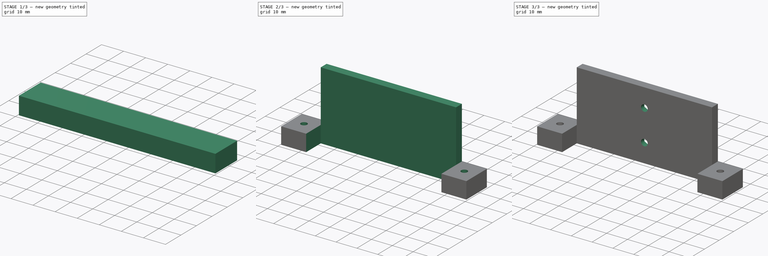
[diagram: build sequence overview — one tinted view per stage of 3, left to right]
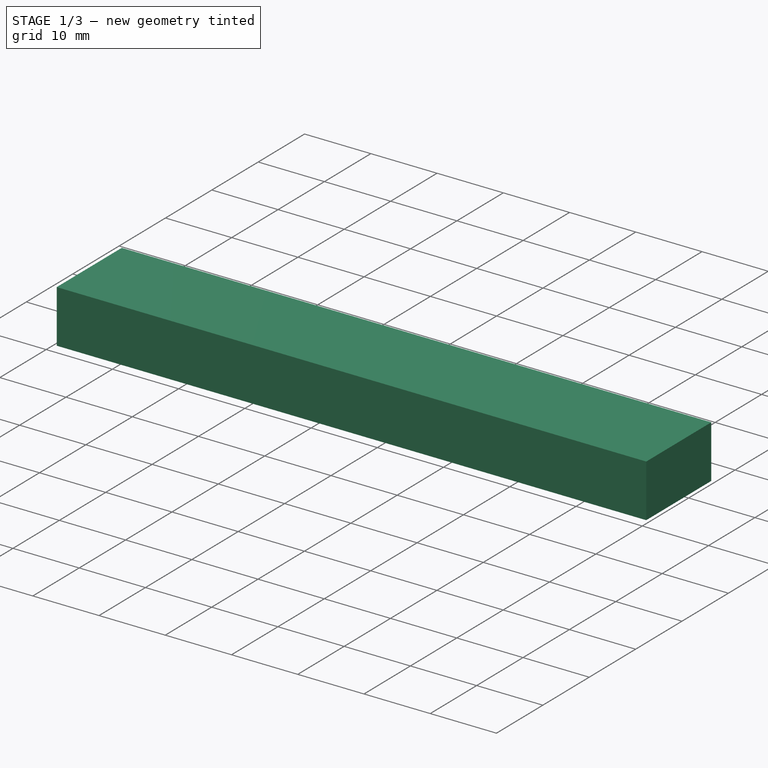
[diagram: stage 1 of 3 — iso view after this stage's code; geometry added in this stage tinted green]
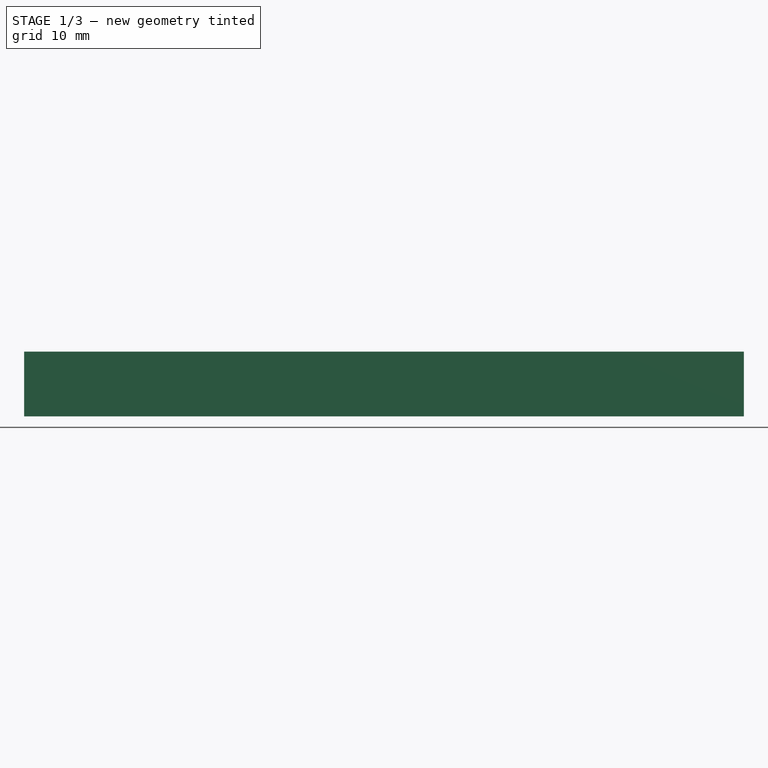
[diagram: stage 1 of 3 — front view after this stage's code; geometry added in this stage tinted green]
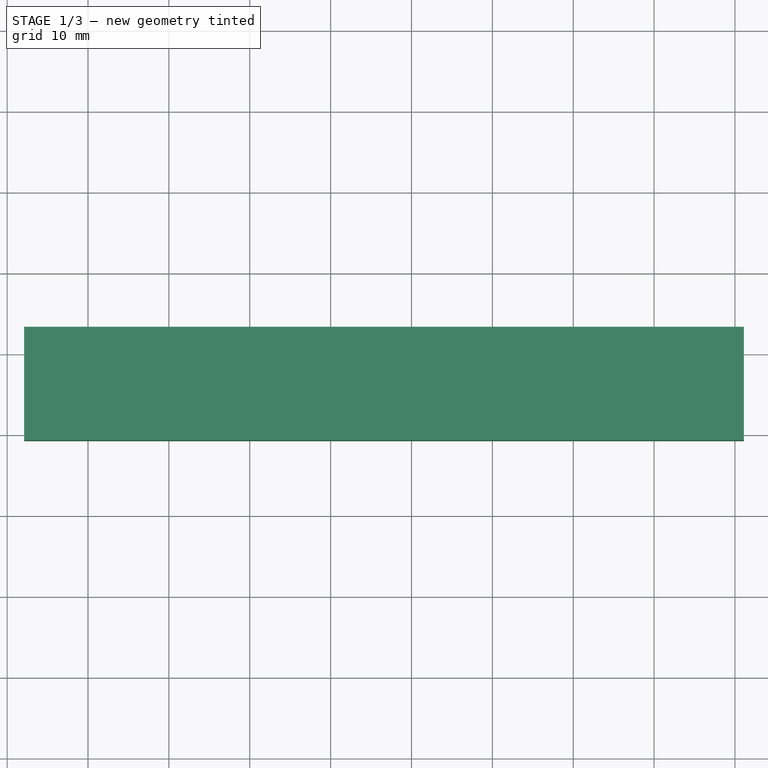
[diagram: stage 1 of 3 — top view after this stage's code; geometry added in this stage tinted green]
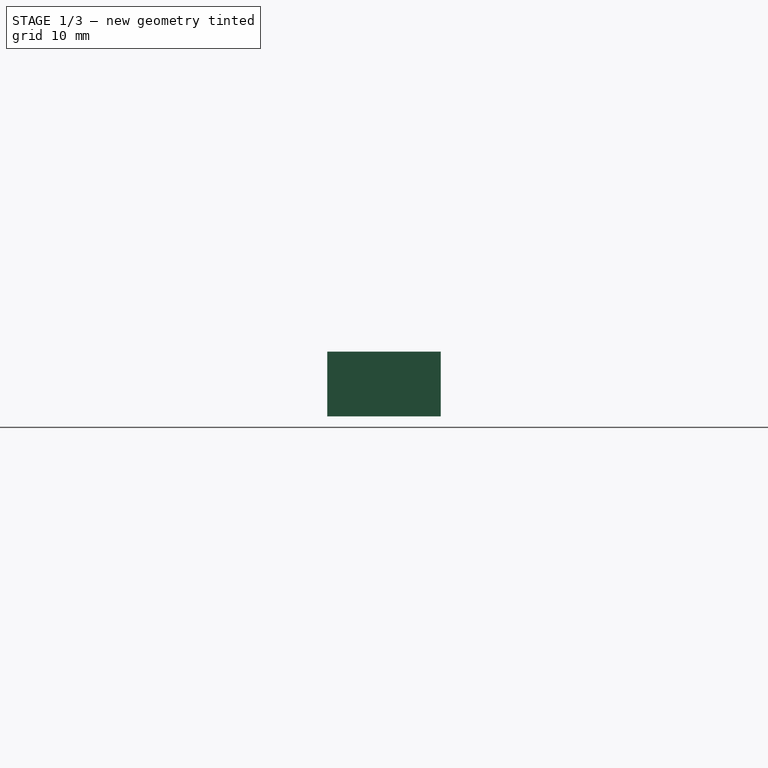
[diagram: stage 1 of 3 — right view after this stage's code; geometry added in this stage tinted green]
FCSTD DOCUMENT  (FreeCAD 0.19R24366 (Git))
Label: mfm_deprecated_battery_mount
License: All rights reserved
LicenseURL: http://en.wikipedia.org/wiki/All_rights_reserved
objects: Sketcher::SketchObject×8, PartDesign::Pocket×5, PartDesign::Pad×2, PartDesign::Body×1
note: 23 computed .brp shape members not serialized (recipe doc carries the construction recipe); baked Part::Feature solids carry a one-line shape summary decoded from their .brp

FEATURE [Sketcher::SketchObject] Sketch  label="Enclosure Outline"
  FullyConstrained = false
  sketch-geometry (275):
    g0: LineSegment StartX=177.84 StartY=124.307 StartZ=0 EndX=177.84 EndY=123.222 EndZ=0
    g1: LineSegment StartX=177.84 StartY=123.222 StartZ=0 EndX=177.241 EndY=123.222 EndZ=0
    g2: LineSegment StartX=177.241 StartY=123.222 StartZ=0 EndX=177.241 EndY=122.916 EndZ=0
    g3: LineSegment StartX=177.241 StartY=122.916 StartZ=0 EndX=177.84 EndY=122.916 EndZ=0
    g4: LineSegment StartX=177.84 StartY=122.916 StartZ=0 EndX=177.84 EndY=122.578 EndZ=0
    g5: LineSegment StartX=177.84 StartY=122.578 StartZ=0 EndX=178.122 EndY=122.578 EndZ=0
    g6: LineSegment StartX=178.122 StartY=122.578 StartZ=0 EndX=178.122 EndY=122.916 EndZ=0
    g7: LineSegment StartX=178.122 StartY=122.916 StartZ=0 EndX=179.741 EndY=122.916 EndZ=0
    g8: LineSegment StartX=179.741 StartY=122.916 StartZ=0 EndX=179.741 EndY=123.167 EndZ=0
    g9: LineSegment StartX=179.741 StartY=123.167 StartZ=0 EndX=178.122 EndY=124.307 EndZ=0
    g10: LineSegment StartX=178.122 StartY=124.307 StartZ=0 EndX=177.84 EndY=124.307 EndZ=0
    g11: LineSegment StartX=178.122 StartY=123.222 StartZ=0 EndX=178.122 EndY=124.005 EndZ=0
    g12: LineSegment StartX=178.122 StartY=124.005 StartZ=0 EndX=179.25 EndY=123.222 EndZ=0
    g13: LineSegment StartX=179.25 StartY=123.222 StartZ=0 EndX=178.122 EndY=123.222 EndZ=0
    g14: LineSegment StartX=179.029 StartY=122.247 StartZ=0 EndX=178.996 EndY=121.93 EndZ=0
    g15: BSplineCurve PolesCount=10 KnotsCount=5 Degree=3 IsPeriodic=0
    g16: BSplineCurve PolesCount=12 KnotsCount=6 Degree=3 IsPeriodic=0
    g17: BSplineCurve PolesCount=8 KnotsCount=4 Degree=3 IsPeriodic=0
    g18: BSplineCurve PolesCount=6 KnotsCount=3 Degree=3 IsPeriodic=0
    g19: BSplineCurve PolesCount=6 KnotsCount=3 Degree=3 IsPeriodic=0
    g20: LineSegment StartX=177.241 StartY=122.304 StartZ=0 EndX=177.241 EndY=120.652 EndZ=0
    g21: LineSegment StartX=177.241 StartY=120.652 StartZ=0 EndX=177.537 EndY=120.652 EndZ=0
    g22: LineSegment StartX=177.537 StartY=120.652 StartZ=0 EndX=177.537 EndY=121.877 EndZ=0
    g23: BSplineCurve PolesCount=6 KnotsCount=3 Degree=3 IsPeriodic=0
    g24: BSplineCurve PolesCount=8 KnotsCount=4 Degree=3 IsPeriodic=0
    g25: BSplineCurve PolesCount=10 KnotsCount=5 Degree=3 IsPeriodic=0
    g26: BSplineCurve PolesCount=10 KnotsCount=5 Degree=3 IsPeriodic=0
    g27: LineSegment StartX=174.553 StartY=146.394 StartZ=0 EndX=174.553 EndY=98.423 EndZ=0
    g28: ArcOfCircle CenterX=180.101 CenterY=93.9087 CenterZ=0 NormalX=0 NormalY=0 NormalZ=1 AngleXU=0 Radius=7.15218 StartAngle=1.5708 EndAngle=2.45851
    g29: LineSegment StartX=180.101 StartY=101.061 StartZ=0 EndX=180.601 EndY=101.061 EndZ=0
    g30: ArcOfCircle CenterX=180.601 CenterY=102.909 CenterZ=0 NormalX=0 NormalY=0 NormalZ=1 AngleXU=0 Radius=1.84782 StartAngle=4.71239 EndAngle=6.28319
    g31: LineSegment StartX=182.448 StartY=102.909 StartZ=0 EndX=182.448 EndY=141.909 EndZ=0
    g32: ArcOfCircle CenterX=180.601 CenterY=141.909 CenterZ=0 NormalX=0 NormalY=0 NormalZ=1 AngleXU=0 Radius=1.84782 StartAngle=0 EndAngle=1.5708
    g33: LineSegment StartX=180.601 StartY=143.756 StartZ=0 EndX=180.101 EndY=143.756 EndZ=0
    g34: ArcOfCircle CenterX=180.101 CenterY=150.909 CenterZ=0 NormalX=0 NormalY=0 NormalZ=1 AngleXU=0 Radius=7.15218 StartAngle=3.82468 EndAngle=4.71239
    g35: ArcOfCircle CenterX=73.1006 CenterY=150.909 CenterZ=0 NormalX=0 NormalY=0 NormalZ=1 AngleXU=0 Radius=7.15218 StartAngle=4.71239 EndAngle=5.6001
    g36: ArcOfCircle CenterX=73.1006 CenterY=93.9087 CenterZ=0 NormalX=0 NormalY=0 NormalZ=1 AngleXU=0 Radius=7.15218 StartAngle=0.683086 EndAngle=1.5708
    g37: LineSegment StartX=78.6481 StartY=98.423 StartZ=0 EndX=78.6481 EndY=146.394 EndZ=0
    g38: LineSegment StartX=79.8737 StartY=148.78 StartZ=0 EndX=79.8737 EndY=96.0378 EndZ=0
    g39: LineSegment StartX=73.1006 StartY=143.756 StartZ=0 EndX=72.6006 EndY=143.756 EndZ=0
    g40: ArcOfCircle CenterX=72.6006 CenterY=141.909 CenterZ=0 NormalX=0 NormalY=0 NormalZ=1 AngleXU=0 Radius=1.84782 StartAngle=1.5708 EndAngle=3.14159
    g41: LineSegment StartX=70.7528 StartY=141.909 StartZ=0 EndX=70.7528 EndY=102.909 EndZ=0
    g42: ArcOfCircle CenterX=72.6006 CenterY=102.909 CenterZ=0 NormalX=0 NormalY=0 NormalZ=1 AngleXU=0 Radius=1.84782 StartAngle=3.14159 EndAngle=4.71239
    g43: LineSegment StartX=72.6006 StartY=101.061 StartZ=0 EndX=73.1006 EndY=101.061 EndZ=0
    g44: LineSegment StartX=173.328 StartY=96.0378 StartZ=0 EndX=173.328 EndY=148.78 EndZ=0
    g45: LineSegment StartX=175.16 StartY=161.409 StartZ=0 EndX=175.16 EndY=150.909 EndZ=0
    g46: LineSegment StartX=175.601 StartY=150.909 StartZ=0 EndX=175.601 EndY=156.94 EndZ=0
    g47: LineSegment StartX=175.601 StartY=161.409 StartZ=0 EndX=175.601 EndY=156.94 EndZ=0
    g48: ArcOfCircle CenterX=180.101 CenterY=150.909 CenterZ=0 NormalX=0 NormalY=0 NormalZ=1 AngleXU=0 Radius=4.94082 StartAngle=3.14159 EndAngle=4.71239
    g49: ArcOfCircle CenterX=180.101 CenterY=150.909 CenterZ=0 NormalX=0 NormalY=0 NormalZ=1 AngleXU=0 Radius=4.5 StartAngle=3.14159 EndAngle=4.71239
    g50: LineSegment StartX=175.16 StartY=93.9087 StartZ=0 EndX=175.16 EndY=83.4087 EndZ=0
    g51: LineSegment StartX=175.601 StartY=87.8773 StartZ=0 EndX=175.601 EndY=83.4087 EndZ=0
    g52: LineSegment StartX=175.601 StartY=87.8773 StartZ=0 EndX=175.601 EndY=93.9087 EndZ=0
    g53: ArcOfCircle CenterX=180.101 CenterY=93.9087 CenterZ=0 NormalX=0 NormalY=0 NormalZ=1 AngleXU=0 Radius=4.94082 StartAngle=1.5708 EndAngle=3.14159
    g54: ArcOfCircle CenterX=180.101 CenterY=93.9087 CenterZ=0 NormalX=0 NormalY=0 NormalZ=1 AngleXU=0 Radius=4.5 StartAngle=1.5708 EndAngle=3.14159
    g55: ArcOfCircle CenterX=73.1006 CenterY=93.9087 CenterZ=0 NormalX=0 NormalY=0 NormalZ=1 AngleXU=0 Radius=4.94082 StartAngle=0 EndAngle=1.5708
    g56: ArcOfCircle CenterX=73.1006 CenterY=93.9087 CenterZ=0 NormalX=0 NormalY=0 NormalZ=1 AngleXU=0 Radius=4.5 StartAngle=0 EndAngle=1.5708
    g57: LineSegment StartX=78.0415 StartY=83.4087 StartZ=0 EndX=78.0415 EndY=93.9087 EndZ=0
    g58: LineSegment StartX=77.6006 StartY=93.9087 StartZ=0 EndX=77.6006 EndY=87.8773 EndZ=0
    g59: LineSegment StartX=77.6006 StartY=83.4087 StartZ=0 EndX=77.6006 EndY=87.8773 EndZ=0
    g60: LineSegment StartX=180.101 StartY=146.409 StartZ=0 EndX=180.601 EndY=146.409 EndZ=0
    g61: ArcOfCircle CenterX=180.601 CenterY=141.909 CenterZ=0 NormalX=0 NormalY=0 NormalZ=1 AngleXU=0 Radius=4.5 StartAngle=0 EndAngle=1.5708
    g62: LineSegment StartX=185.101 StartY=141.909 StartZ=0 EndX=185.101 EndY=102.909 EndZ=0
    g63: ArcOfCircle CenterX=180.601 CenterY=102.909 CenterZ=0 NormalX=0 NormalY=0 NormalZ=1 AngleXU=0 Radius=4.5 StartAngle=4.71239 EndAngle=6.28319
    g64: LineSegment StartX=180.601 StartY=98.4087 StartZ=0 EndX=180.101 EndY=98.4087 EndZ=0
    g65: ArcOfCircle CenterX=171.101 CenterY=83.4087 CenterZ=0 NormalX=0 NormalY=0 NormalZ=1 AngleXU=0 Radius=4.5 StartAngle=4.71239 EndAngle=6.28319
    g66: LineSegment StartX=171.101 StartY=78.9087 StartZ=0 EndX=82.1006 EndY=78.9087 EndZ=0
    g67: ArcOfCircle CenterX=82.1006 CenterY=83.4087 CenterZ=0 NormalX=0 NormalY=0 NormalZ=1 AngleXU=0 Radius=4.5 StartAngle=3.14159 EndAngle=4.71239
    g68: LineSegment StartX=73.1006 StartY=98.4087 StartZ=0 EndX=72.6006 EndY=98.4087 EndZ=0
    g69: ArcOfCircle CenterX=72.6006 CenterY=102.909 CenterZ=0 NormalX=0 NormalY=0 NormalZ=1 AngleXU=0 Radius=4.5 StartAngle=3.14159 EndAngle=4.71239
    g70: LineSegment StartX=68.1006 StartY=102.909 StartZ=0 EndX=68.1006 EndY=141.909 EndZ=0
    g71: ArcOfCircle CenterX=72.6006 CenterY=141.909 CenterZ=0 NormalX=0 NormalY=0 NormalZ=1 AngleXU=0 Radius=4.5 StartAngle=1.5708 EndAngle=3.14159
    g72: LineSegment StartX=72.6006 StartY=146.409 StartZ=0 EndX=73.1006 EndY=146.409 EndZ=0
    g73: LineSegment StartX=77.6006 StartY=156.94 StartZ=0 EndX=77.6006 EndY=161.409 EndZ=0
    g74: ArcOfCircle CenterX=82.1006 CenterY=161.409 CenterZ=0 NormalX=0 NormalY=0 NormalZ=1 AngleXU=0 Radius=4.5 StartAngle=1.5708 EndAngle=3.14159
    g75: LineSegment StartX=82.1006 StartY=165.909 StartZ=0 EndX=171.101 EndY=165.909 EndZ=0
    g76: ArcOfCircle CenterX=171.101 CenterY=161.409 CenterZ=0 NormalX=0 NormalY=0 NormalZ=1 AngleXU=0 Radius=4.5 StartAngle=0 EndAngle=1.5708
    g77: ArcOfCircle CenterX=73.1006 CenterY=150.909 CenterZ=0 NormalX=0 NormalY=0 NormalZ=1 AngleXU=0 Radius=4.94082 StartAngle=4.71239 EndAngle=6.28319
    g78: ArcOfCircle CenterX=73.1006 CenterY=150.909 CenterZ=0 NormalX=0 NormalY=0 NormalZ=1 AngleXU=0 Radius=4.5 StartAngle=4.71239 EndAngle=6.28319
    g79: LineSegment StartX=78.0415 StartY=150.909 StartZ=0 EndX=78.0415 EndY=161.409 EndZ=0
    g80: LineSegment StartX=77.6006 StartY=156.94 StartZ=0 EndX=77.6006 EndY=150.909 EndZ=0
    g81: ArcOfCircle CenterX=180.101 CenterY=93.9087 CenterZ=0 NormalX=0 NormalY=0 NormalZ=1 AngleXU=0 Radius=6 StartAngle=1.5708 EndAngle=3.14159
    g82: ArcOfCircle CenterX=180.101 CenterY=150.909 CenterZ=0 NormalX=0 NormalY=0 NormalZ=1 AngleXU=0 Radius=6 StartAngle=3.14159 EndAngle=4.71239
    g83: ArcOfCircle CenterX=73.1006 CenterY=150.909 CenterZ=0 NormalX=0 NormalY=0 NormalZ=1 AngleXU=0 Radius=6 StartAngle=4.71239 EndAngle=6.28319
    g84: ArcOfCircle CenterX=73.1006 CenterY=93.9087 CenterZ=0 NormalX=0 NormalY=0 NormalZ=1 AngleXU=0 Radius=6 StartAngle=0 EndAngle=1.5708
    g85: LineSegment StartX=78.6598 StartY=150.909 StartZ=0 EndX=78.6598 EndY=161.409 EndZ=0
    g86: LineSegment StartX=79.1006 StartY=150.909 StartZ=0 EndX=79.1006 EndY=161.409 EndZ=0
    g87: ArcOfCircle CenterX=82.1006 CenterY=161.409 CenterZ=0 NormalX=0 NormalY=0 NormalZ=1 AngleXU=0 Radius=3.44082 StartAngle=1.5708 EndAngle=3.14159
    g88: ArcOfCircle CenterX=82.1006 CenterY=161.409 CenterZ=0 NormalX=0 NormalY=0 NormalZ=1 AngleXU=0 Radius=3 StartAngle=1.5708 EndAngle=3.14159
    g89: LineSegment StartX=82.1006 StartY=164.849 StartZ=0 EndX=171.101 EndY=164.849 EndZ=0
    g90: LineSegment StartX=82.1006 StartY=164.409 StartZ=0 EndX=171.101 EndY=164.409 EndZ=0
    g91: ArcOfCircle CenterX=171.101 CenterY=161.409 CenterZ=0 NormalX=0 NormalY=0 NormalZ=1 AngleXU=0 Radius=3.44082 StartAngle=0 EndAngle=1.5708
    g92: ArcOfCircle CenterX=171.101 CenterY=161.409 CenterZ=0 NormalX=0 NormalY=0 NormalZ=1 AngleXU=0 Radius=3 StartAngle=0 EndAngle=1.5708
    g93: LineSegment StartX=174.541 StartY=161.409 StartZ=0 EndX=174.541 EndY=150.909 EndZ=0
    g94: LineSegment StartX=174.101 StartY=161.409 StartZ=0 EndX=174.101 EndY=150.909 EndZ=0
    g95: ArcOfCircle CenterX=180.101 CenterY=150.909 CenterZ=0 NormalX=0 NormalY=0 NormalZ=1 AngleXU=0 Radius=5.55918 StartAngle=3.14159 EndAngle=4.71239
    g96: LineSegment StartX=180.101 StartY=145.349 StartZ=0 EndX=180.601 EndY=145.349 EndZ=0
    g97: LineSegment StartX=180.101 StartY=144.909 StartZ=0 EndX=180.601 EndY=144.909 EndZ=0
    g98: ArcOfCircle CenterX=180.601 CenterY=141.909 CenterZ=0 NormalX=0 NormalY=0 NormalZ=1 AngleXU=0 Radius=3.44082 StartAngle=0 EndAngle=1.5708
    g99: ArcOfCircle CenterX=180.601 CenterY=141.909 CenterZ=0 NormalX=0 NormalY=0 NormalZ=1 AngleXU=0 Radius=3 StartAngle=0 EndAngle=1.5708
    g100: LineSegment StartX=184.041 StartY=141.909 StartZ=0 EndX=184.041 EndY=102.909 EndZ=0
    g101: LineSegment StartX=183.601 StartY=141.909 StartZ=0 EndX=183.601 EndY=102.909 EndZ=0
    g102: ArcOfCircle CenterX=180.601 CenterY=102.909 CenterZ=0 NormalX=0 NormalY=0 NormalZ=1 AngleXU=0 Radius=3.44082 StartAngle=4.71239 EndAngle=6.28319
    g103: ArcOfCircle CenterX=180.601 CenterY=102.909 CenterZ=0 NormalX=0 NormalY=0 NormalZ=1 AngleXU=0 Radius=3 StartAngle=4.71239 EndAngle=6.28319
    g104: LineSegment StartX=180.601 StartY=99.4678 StartZ=0 EndX=180.101 EndY=99.4678 EndZ=0
    g105: LineSegment StartX=180.601 StartY=99.9087 StartZ=0 EndX=180.101 EndY=99.9087 EndZ=0
    g106: ArcOfCircle CenterX=180.101 CenterY=93.9087 CenterZ=0 NormalX=0 NormalY=0 NormalZ=1 AngleXU=0 Radius=5.55918 StartAngle=1.5708 EndAngle=3.14159
    g107: LineSegment StartX=174.541 StartY=93.9087 StartZ=0 EndX=174.541 EndY=83.4087 EndZ=0
    g108: LineSegment StartX=174.101 StartY=93.9087 StartZ=0 EndX=174.101 EndY=83.4087 EndZ=0
    g109: ArcOfCircle CenterX=171.101 CenterY=83.4087 CenterZ=0 NormalX=0 NormalY=0 NormalZ=1 AngleXU=0 Radius=3.44082 StartAngle=4.71239 EndAngle=6.28319
    g110: ArcOfCircle CenterX=171.101 CenterY=83.4087 CenterZ=0 NormalX=0 NormalY=0 NormalZ=1 AngleXU=0 Radius=3 StartAngle=4.71239 EndAngle=6.28319
    g111: LineSegment StartX=171.101 StartY=79.9678 StartZ=0 EndX=82.1006 EndY=79.9678 EndZ=0
    g112: LineSegment StartX=171.101 StartY=80.4087 StartZ=0 EndX=82.1006 EndY=80.4087 EndZ=0
    g113: ArcOfCircle CenterX=82.1006 CenterY=83.4087 CenterZ=0 NormalX=0 NormalY=0 NormalZ=1 AngleXU=0 Radius=3.44082 StartAngle=3.14159 EndAngle=4.71239
    g114: ArcOfCircle CenterX=82.1006 CenterY=83.4087 CenterZ=0 NormalX=0 NormalY=0 NormalZ=1 AngleXU=0 Radius=3 StartAngle=3.14159 EndAngle=4.71239
    g115: LineSegment StartX=78.6598 StartY=83.4087 StartZ=0 EndX=78.6598 EndY=93.9087 EndZ=0
    g116: LineSegment StartX=79.1006 StartY=83.4087 StartZ=0 EndX=79.1006 EndY=93.9087 EndZ=0
    g117: ArcOfCircle CenterX=73.1006 CenterY=93.9087 CenterZ=0 NormalX=0 NormalY=0 NormalZ=1 AngleXU=0 Radius=5.55918 StartAngle=0 EndAngle=1.5708
    g118: LineSegment StartX=73.1006 StartY=99.4678 StartZ=0 EndX=72.6006 EndY=99.4678 EndZ=0
    g119: LineSegment StartX=73.1006 StartY=99.9087 StartZ=0 EndX=72.6006 EndY=99.9087 EndZ=0
    g120: ArcOfCircle CenterX=72.6006 CenterY=102.909 CenterZ=0 NormalX=0 NormalY=0 NormalZ=1 AngleXU=0 Radius=3.44082 StartAngle=3.14159 EndAngle=4.71239
    g121: ArcOfCircle CenterX=72.6006 CenterY=102.909 CenterZ=0 NormalX=0 NormalY=0 NormalZ=1 AngleXU=0 Radius=3 StartAngle=3.14159 EndAngle=4.71239
    g122: LineSegment StartX=69.1598 StartY=102.909 StartZ=0 EndX=69.1598 EndY=141.909 EndZ=0
    g123: LineSegment StartX=69.6006 StartY=102.909 StartZ=0 EndX=69.6006 EndY=141.909 EndZ=0
    g124: ArcOfCircle CenterX=72.6006 CenterY=141.909 CenterZ=0 NormalX=0 NormalY=0 NormalZ=1 AngleXU=0 Radius=3.44082 StartAngle=1.5708 EndAngle=3.14159
    g125: ArcOfCircle CenterX=72.6006 CenterY=141.909 CenterZ=0 NormalX=0 NormalY=0 NormalZ=1 AngleXU=0 Radius=3 StartAngle=1.5708 EndAngle=3.14159
    g126: LineSegment StartX=72.6006 StartY=145.349 StartZ=0 EndX=73.1006 EndY=145.349 EndZ=0
    g127: LineSegment StartX=72.6006 StartY=144.909 StartZ=0 EndX=73.1006 EndY=144.909 EndZ=0
    g128: ArcOfCircle CenterX=73.1006 CenterY=150.909 CenterZ=0 NormalX=0 NormalY=0 NormalZ=1 AngleXU=0 Radius=5.55918 StartAngle=4.71239 EndAngle=6.28319
    g129: ArcOfCircle CenterX=82.1006 CenterY=161.409 CenterZ=0 NormalX=0 NormalY=0 NormalZ=1 AngleXU=0 Radius=4.05918 StartAngle=1.5708 EndAngle=3.14159
    g130: LineSegment StartX=82.1006 StartY=165.468 StartZ=0 EndX=171.101 EndY=165.468 EndZ=0
    g131: ArcOfCircle CenterX=171.101 CenterY=161.409 CenterZ=0 NormalX=0 NormalY=0 NormalZ=1 AngleXU=0 Radius=4.05918 StartAngle=0 EndAngle=1.5708
    g132: LineSegment StartX=180.101 StartY=145.968 StartZ=0 EndX=180.601 EndY=145.968 EndZ=0
    g133: ArcOfCircle CenterX=180.601 CenterY=141.909 CenterZ=0 NormalX=0 NormalY=0 NormalZ=1 AngleXU=0 Radius=4.05918 StartAngle=0 EndAngle=1.5708
    g134: LineSegment StartX=184.66 StartY=141.909 StartZ=0 EndX=184.66 EndY=102.909 EndZ=0
    g135: ArcOfCircle CenterX=180.601 CenterY=102.909 CenterZ=0 NormalX=0 NormalY=0 NormalZ=1 AngleXU=0 Radius=4.05918 StartAngle=4.71239 EndAngle=6.28319
    g136: LineSegment StartX=180.601 StartY=98.8495 StartZ=0 EndX=180.101 EndY=98.8495 EndZ=0
    g137: ArcOfCircle CenterX=171.101 CenterY=83.4087 CenterZ=0 NormalX=0 NormalY=0 NormalZ=1 AngleXU=0 Radius=4.05918 StartAngle=4.71239 EndAngle=6.28319
    g138: LineSegment StartX=171.101 StartY=79.3495 StartZ=0 EndX=82.1006 EndY=79.3495 EndZ=0
    g139: ArcOfCircle CenterX=82.1006 CenterY=83.4087 CenterZ=0 NormalX=0 NormalY=0 NormalZ=1 AngleXU=0 Radius=4.05918 StartAngle=3.14159 EndAngle=4.71239
    g140: LineSegment StartX=73.1006 StartY=98.8495 StartZ=0 EndX=72.6006 EndY=98.8495 EndZ=0
    g141: ArcOfCircle CenterX=72.6006 CenterY=102.909 CenterZ=0 NormalX=0 NormalY=0 NormalZ=1 AngleXU=0 Radius=4.05918 StartAngle=3.14159 EndAngle=4.71239
    g142: LineSegment StartX=68.5415 StartY=102.909 StartZ=0 EndX=68.5415 EndY=141.909 EndZ=0
    g143: ArcOfCircle CenterX=72.6006 CenterY=141.909 CenterZ=0 NormalX=0 NormalY=0 NormalZ=1 AngleXU=0 Radius=4.05918 StartAngle=1.5708 EndAngle=3.14159
    g144: LineSegment StartX=72.6006 StartY=145.968 StartZ=0 EndX=73.1006 EndY=145.968 EndZ=0
    g145: LineSegment StartX=175.985 StartY=156.029 StartZ=0 EndX=175.985 EndY=150.909 EndZ=0
    g146: ArcOfCircle CenterX=180.101 CenterY=150.909 CenterZ=0 NormalX=0 NormalY=0 NormalZ=1 AngleXU=0 Radius=4.11602 StartAngle=3.14159 EndAngle=4.70744
    g147: ArcOfCircle CenterX=180.601 CenterY=141.909 CenterZ=0 NormalX=0 NormalY=0 NormalZ=1 AngleXU=0 Radius=4.91167 StartAngle=0.820843 EndAngle=1.67694
    g148: LineSegment StartX=183.948 StartY=145.503 StartZ=0 EndX=183.948 EndY=155.815 EndZ=0
    g149: ArcOfCircle CenterX=180.101 CenterY=160.909 CenterZ=0 NormalX=0 NormalY=0 NormalZ=1 AngleXU=0 Radius=6.38398 StartAngle=4.0117 EndAngle=5.35931
    g150: LineSegment StartX=185.101 StartY=157.592 StartZ=0 EndX=185.101 EndY=142.409 EndZ=0
    g151: LineSegment StartX=185.101 StartY=102.409 StartZ=0 EndX=185.101 EndY=87.2253 EndZ=0
    g152: ArcOfCircle CenterX=180.101 CenterY=160.909 CenterZ=0 NormalX=0 NormalY=0 NormalZ=1 AngleXU=0 Radius=6 StartAngle=3.86433 EndAngle=5.6975
    g153: ArcOfCircle CenterX=180.601 CenterY=141.909 CenterZ=0 NormalX=0 NormalY=0 NormalZ=1 AngleXU=0 Radius=4.52769 StartAngle=0.110657 EndAngle=1.68145
    g154: ArcOfCircle CenterX=180.601 CenterY=102.909 CenterZ=0 NormalX=0 NormalY=0 NormalZ=1 AngleXU=0 Radius=4.52769 StartAngle=4.60173 EndAngle=6.17253
    g155: ArcOfCircle CenterX=180.101 CenterY=83.9087 CenterZ=0 NormalX=0 NormalY=0 NormalZ=1 AngleXU=0 Radius=6 StartAngle=0.585686 EndAngle=2.41886
    g156: ArcOfCircle CenterX=73.1006 CenterY=83.9087 CenterZ=0 NormalX=0 NormalY=0 NormalZ=1 AngleXU=0 Radius=6 StartAngle=0.722734 EndAngle=2.55591
    g157: LineSegment StartX=68.1006 StartY=87.2253 StartZ=0 EndX=68.1006 EndY=102.409 EndZ=0
    g158: ArcOfCircle CenterX=72.6006 CenterY=102.909 CenterZ=0 NormalX=0 NormalY=0 NormalZ=1 AngleXU=0 Radius=4.52769 StartAngle=3.25225 EndAngle=4.82305
    g159: ArcOfCircle CenterX=72.6006 CenterY=141.909 CenterZ=0 NormalX=0 NormalY=0 NormalZ=1 AngleXU=0 Radius=4.52769 StartAngle=1.46014 EndAngle=3.03094
    g160: LineSegment StartX=68.1006 StartY=142.409 StartZ=0 EndX=68.1006 EndY=157.592 EndZ=0
    g161: ArcOfCircle CenterX=73.1006 CenterY=160.909 CenterZ=0 NormalX=0 NormalY=0 NormalZ=1 AngleXU=0 Radius=6 StartAngle=3.72728 EndAngle=5.56045
    g162: BSplineCurve PolesCount=3 KnotsCount=2 Degree=2 IsPeriodic=0
    g163: BSplineCurve PolesCount=3 KnotsCount=2 Degree=2 IsPeriodic=0
    g164: BSplineCurve PolesCount=4 KnotsCount=2 Degree=3 IsPeriodic=0
    g165: BSplineCurve PolesCount=4 KnotsCount=2 Degree=3 IsPeriodic=0
    g166: BSplineCurve PolesCount=3 KnotsCount=2 Degree=2 IsPeriodic=0
    g167: BSplineCurve PolesCount=3 KnotsCount=2 Degree=2 IsPeriodic=0
    g168: BSplineCurve PolesCount=4 KnotsCount=2 Degree=3 IsPeriodic=0
    g169: BSplineCurve PolesCount=4 KnotsCount=2 Degree=3 IsPeriodic=0
    g170: BSplineCurve PolesCount=4 KnotsCount=2 Degree=3 IsPeriodic=0
    g171: BSplineCurve PolesCount=4 KnotsCount=2 Degree=3 IsPeriodic=0
    g172: BSplineCurve PolesCount=3 KnotsCount=2 Degree=2 IsPeriodic=0
    g173: BSplineCurve PolesCount=3 KnotsCount=2 Degree=2 IsPeriodic=0
    g174: BSplineCurve PolesCount=4 KnotsCount=2 Degree=3 IsPeriodic=0
    g175: BSplineCurve PolesCount=4 KnotsCount=2 Degree=3 IsPeriodic=0
    g176: BSplineCurve PolesCount=3 KnotsCount=2 Degree=2 IsPeriodic=0
    g177: BSplineCurve PolesCount=3 KnotsCount=2 Degree=2 IsPeriodic=0
    g178: ArcOfCircle CenterX=180.101 CenterY=93.9087 CenterZ=0 NormalX=0 NormalY=0 NormalZ=1 AngleXU=0 Radius=7.09981 StartAngle=2.83702 EndAngle=3.14159
    g179: ArcOfCircle CenterX=180.101 CenterY=150.909 CenterZ=0 NormalX=0 NormalY=0 NormalZ=1 AngleXU=0 Radius=7.09981 StartAngle=3.14159 EndAngle=3.44617
    g180: ArcOfCircle CenterX=73.1006 CenterY=150.909 CenterZ=0 NormalX=0 NormalY=0 NormalZ=1 AngleXU=0 Radius=7.09981 StartAngle=5.97861 EndAngle=6.28319
    g181: ArcOfCircle CenterX=73.1006 CenterY=93.9087 CenterZ=0 NormalX=0 NormalY=0 NormalZ=1 AngleXU=0 Radius=7.09981 StartAngle=0 EndAngle=0.304574
    g182: LineSegment StartX=80.2005 StartY=161.409 StartZ=0 EndX=80.2005 EndY=150.909 EndZ=0
    g183: LineSegment StartX=80.2005 StartY=93.9087 StartZ=0 EndX=80.2005 EndY=83.4087 EndZ=0
    g184: ArcOfCircle CenterX=82.1006 CenterY=83.4087 CenterZ=0 NormalX=0 NormalY=0 NormalZ=1 AngleXU=0 Radius=1.90019 StartAngle=3.14159 EndAngle=4.71239
    g185: LineSegment StartX=82.1006 StartY=81.5085 StartZ=0 EndX=171.101 EndY=81.5085 EndZ=0
    g186: ArcOfCircle CenterX=171.101 CenterY=83.4087 CenterZ=0 NormalX=0 NormalY=0 NormalZ=1 AngleXU=0 Radius=1.90019 StartAngle=4.71239 EndAngle=6.28319
    g187: LineSegment StartX=173.001 StartY=83.4087 StartZ=0 EndX=173.001 EndY=93.9087 EndZ=0
    g188: LineSegment StartX=173.001 StartY=150.909 StartZ=0 EndX=173.001 EndY=161.409 EndZ=0
    g189: ArcOfCircle CenterX=171.101 CenterY=161.409 CenterZ=0 NormalX=0 NormalY=0 NormalZ=1 AngleXU=0 Radius=1.90019 StartAngle=0 EndAngle=1.5708
    g190: LineSegment StartX=171.101 StartY=163.309 StartZ=0 EndX=82.1006 EndY=163.309 EndZ=0
    g191: ArcOfCircle CenterX=82.1006 CenterY=161.409 CenterZ=0 NormalX=0 NormalY=0 NormalZ=1 AngleXU=0 Radius=1.90019 StartAngle=1.5708 EndAngle=3.14159
    g192: ArcOfCircle CenterX=180.101 CenterY=93.9087 CenterZ=0 NormalX=0 NormalY=0 NormalZ=1 AngleXU=0 Radius=4.11602 StartAngle=1.57574 EndAngle=3.14159
    g193: LineSegment StartX=175.985 StartY=93.9087 StartZ=0 EndX=175.985 EndY=88.7886 EndZ=0
    g194: ArcOfCircle CenterX=180.101 CenterY=83.9087 CenterZ=0 NormalX=0 NormalY=0 NormalZ=1 AngleXU=0 Radius=6.38398 StartAngle=0.923878 EndAngle=2.27148
    g195: LineSegment StartX=183.948 StartY=89.0027 StartZ=0 EndX=183.948 EndY=99.3147 EndZ=0
    g196: ArcOfCircle CenterX=180.601 CenterY=102.909 CenterZ=0 NormalX=0 NormalY=0 NormalZ=1 AngleXU=0 Radius=4.91167 StartAngle=4.60625 EndAngle=5.46234
    g197: LineSegment StartX=69.2528 StartY=99.3147 StartZ=0 EndX=69.2528 EndY=89.0027 EndZ=0
    g198: ArcOfCircle CenterX=73.1006 CenterY=83.9087 CenterZ=0 NormalX=0 NormalY=0 NormalZ=1 AngleXU=0 Radius=6.38398 StartAngle=0.870111 EndAngle=2.21771
    g199: LineSegment StartX=77.2167 StartY=88.7886 StartZ=0 EndX=77.2167 EndY=93.9087 EndZ=0
    g200: ArcOfCircle CenterX=73.1006 CenterY=93.9087 CenterZ=0 NormalX=0 NormalY=0 NormalZ=1 AngleXU=0 Radius=4.11602 StartAngle=0 EndAngle=1.56585
    g201: ArcOfCircle CenterX=72.6006 CenterY=102.909 CenterZ=0 NormalX=0 NormalY=0 NormalZ=1 AngleXU=0 Radius=4.91167 StartAngle=3.96244 EndAngle=4.81853
    g202: LineSegment StartX=71.5989 StartY=79.3218 StartZ=0 EndX=75.1137 EndY=79.3218 EndZ=0
    g203: ArcOfCircle CenterX=75.1137 CenterY=77.0718 CenterZ=0 NormalX=0 NormalY=0 NormalZ=1 AngleXU=0 Radius=2.25 StartAngle=0.672709 EndAngle=1.5708
    g204: BSplineCurve PolesCount=18 KnotsCount=16 Degree=3 IsPeriodic=0
    g205: LineSegment StartX=78.0462 StartY=77.9087 StartZ=0 EndX=175.155 EndY=77.9087 EndZ=0
    g206: BSplineCurve PolesCount=16 KnotsCount=14 Degree=3 IsPeriodic=0
    g207: ArcOfCircle CenterX=178.088 CenterY=77.0718 CenterZ=0 NormalX=0 NormalY=0 NormalZ=1 AngleXU=0 Radius=2.25 StartAngle=1.5708 EndAngle=2.46888
    g208: LineSegment StartX=178.088 StartY=79.3218 StartZ=0 EndX=181.602 EndY=79.3218 EndZ=0
    g209: BSplineCurve PolesCount=18 KnotsCount=16 Degree=3 IsPeriodic=0
    g210: LineSegment StartX=186.101 StartY=83.82 StartZ=0 EndX=186.101 EndY=160.997 EndZ=0
    g211: BSplineCurve PolesCount=18 KnotsCount=16 Degree=3 IsPeriodic=0
    g212: LineSegment StartX=181.602 StartY=165.496 StartZ=0 EndX=178.088 EndY=165.496 EndZ=0
    g213: ArcOfCircle CenterX=178.088 CenterY=167.746 CenterZ=0 NormalX=0 NormalY=0 NormalZ=1 AngleXU=0 Radius=2.25 StartAngle=3.8143 EndAngle=4.71239
    g214: BSplineCurve PolesCount=16 KnotsCount=14 Degree=3 IsPeriodic=0
    g215: LineSegment StartX=175.155 StartY=166.909 StartZ=0 EndX=78.0462 EndY=166.909 EndZ=0
    g216: BSplineCurve PolesCount=18 KnotsCount=16 Degree=3 IsPeriodic=0
    g217: ArcOfCircle CenterX=75.1137 CenterY=167.746 CenterZ=0 NormalX=0 NormalY=0 NormalZ=1 AngleXU=0 Radius=2.25 StartAngle=4.71239 EndAngle=5.61048
    g218: LineSegment StartX=75.1137 StartY=165.496 StartZ=0 EndX=71.5989 EndY=165.496 EndZ=0
    g219: BSplineCurve PolesCount=18 KnotsCount=16 Degree=3 IsPeriodic=0
    g220: LineSegment StartX=67.1006 StartY=160.997 StartZ=0 EndX=67.1006 EndY=83.82 EndZ=0
    g221: BSplineCurve PolesCount=18 KnotsCount=16 Degree=3 IsPeriodic=0
    g222: LineSegment StartX=78.0588 StartY=167.382 StartZ=0 EndX=175.142 EndY=167.382 EndZ=0
    g223: LineSegment StartX=175.142 StartY=77.4348 StartZ=0 EndX=78.0588 EndY=77.4348 EndZ=0
    g224: Ellipse CenterX=181.573 CenterY=83.8497 CenterZ=0 NormalX=0 NormalY=0 NormalZ=1 MajorRadius=5.00343 MinorRadius=5 AngleXU=-0.785398
    g225: LineSegment StartX=186.574 StartY=160.971 StartZ=0 EndX=186.574 EndY=83.8462 EndZ=0
    g226: LineSegment StartX=178.088 StartY=165.969 StartZ=0 EndX=181.576 EndY=165.969 EndZ=0
    g227: ArcOfCircle CenterX=178.088 CenterY=167.746 CenterZ=0 NormalX=0 NormalY=0 NormalZ=1 AngleXU=0 Radius=1.77619 StartAngle=3.81765 EndAngle=4.71239
    g228: BSplineCurve PolesCount=8 KnotsCount=4 Degree=3 IsPeriodic=0
    g229: BSplineCurve PolesCount=8 KnotsCount=4 Degree=3 IsPeriodic=0
    g230: ArcOfCircle CenterX=75.1137 CenterY=167.746 CenterZ=0 NormalX=0 NormalY=0 NormalZ=1 AngleXU=0 Radius=1.77619 StartAngle=4.71239 EndAngle=5.60713
    g231: LineSegment StartX=71.6251 StartY=165.969 StartZ=0 EndX=75.1137 EndY=165.969 EndZ=0
    g232: Ellipse CenterX=71.6285 CenterY=160.968 CenterZ=0 NormalX=0 NormalY=0 NormalZ=1 MajorRadius=5.00343 MinorRadius=5 AngleXU=2.35619
    g233: LineSegment StartX=66.6268 StartY=83.8462 StartZ=0 EndX=66.6268 EndY=160.971 EndZ=0
    g234: Ellipse CenterX=71.6285 CenterY=83.8497 CenterZ=0 NormalX=0 NormalY=0 NormalZ=1 MajorRadius=5.00343 MinorRadius=5 AngleXU=-2.35619
    g235: LineSegment StartX=75.1137 StartY=78.8479 StartZ=0 EndX=71.6251 EndY=78.8479 EndZ=0
    g236: ArcOfCircle CenterX=75.1137 CenterY=77.0718 CenterZ=0 NormalX=0 NormalY=0 NormalZ=1 AngleXU=0 Radius=1.77619 StartAngle=0.676055 EndAngle=1.5708
    g237: BSplineCurve PolesCount=8 KnotsCount=4 Degree=3 IsPeriodic=0
    g238: BSplineCurve PolesCount=8 KnotsCount=4 Degree=3 IsPeriodic=0
    g239: ArcOfCircle CenterX=178.088 CenterY=77.0718 CenterZ=0 NormalX=0 NormalY=0 NormalZ=1 AngleXU=0 Radius=1.77619 StartAngle=1.5708 EndAngle=2.46554
    g240: LineSegment StartX=181.576 StartY=78.8479 StartZ=0 EndX=178.088 EndY=78.8479 EndZ=0
    g241: Circle CenterX=180.101 CenterY=83.9087 CenterZ=0 NormalX=0 NormalY=0 NormalZ=-1 AngleXU=0 Radius=4.25
    g242: Circle CenterX=73.1006 CenterY=160.909 CenterZ=0 NormalX=0 NormalY=0 NormalZ=-1 AngleXU=0 Radius=4.25
    g243: Circle CenterX=180.101 CenterY=160.909 CenterZ=0 NormalX=0 NormalY=0 NormalZ=-1 AngleXU=0 Radius=4.25
    g244: Circle CenterX=73.1006 CenterY=83.9087 CenterZ=0 NormalX=0 NormalY=0 NormalZ=-1 AngleXU=0 Radius=4.25
    g245: Circle CenterX=180.101 CenterY=83.9087 CenterZ=0 NormalX=0 NormalY=0 NormalZ=-1 AngleXU=0 Radius=2.84044
    g246: Circle CenterX=73.1006 CenterY=160.909 CenterZ=0 NormalX=0 NormalY=0 NormalZ=-1 AngleXU=0 Radius=2.84044
    g247: Circle CenterX=180.101 CenterY=160.909 CenterZ=0 NormalX=0 NormalY=0 NormalZ=-1 AngleXU=0 Radius=2.84044
    g248: Circle CenterX=73.1006 CenterY=83.9087 CenterZ=0 NormalX=0 NormalY=0 NormalZ=-1 AngleXU=0 Radius=2.84044
    g249: LineSegment StartX=69.2528 StartY=155.815 StartZ=0 EndX=69.2528 EndY=145.503 EndZ=0
    g250: ArcOfCircle CenterX=72.6006 CenterY=141.909 CenterZ=0 NormalX=0 NormalY=0 NormalZ=1 AngleXU=0 Radius=4.91167 StartAngle=1.46465 EndAngle=2.32075
    g251: ArcOfCircle CenterX=73.1006 CenterY=150.909 CenterZ=0 NormalX=0 NormalY=0 NormalZ=1 AngleXU=0 Radius=4.11602 StartAngle=4.71734 EndAngle=6.28319
    g252: LineSegment StartX=77.2167 StartY=150.909 StartZ=0 EndX=77.2167 EndY=156.029 EndZ=0
    g253: ArcOfCircle CenterX=73.1006 CenterY=160.909 CenterZ=0 NormalX=0 NormalY=0 NormalZ=1 AngleXU=0 Radius=6.38398 StartAngle=4.06547 EndAngle=5.41307
    g254: Circle CenterX=88.1006 CenterY=156.409 CenterZ=0 NormalX=0 NormalY=0 NormalZ=-1 AngleXU=0 Radius=1.07264
    g255: Circle CenterX=88.1006 CenterY=156.409 CenterZ=0 NormalX=0 NormalY=0 NormalZ=-1 AngleXU=0 Radius=1.125
    g256: Circle CenterX=88.1006 CenterY=88.4087 CenterZ=0 NormalX=0 NormalY=0 NormalZ=-1 AngleXU=0 Radius=1.07264
    g257: Circle CenterX=88.1006 CenterY=88.4087 CenterZ=0 NormalX=0 NormalY=0 NormalZ=-1 AngleXU=0 Radius=1.125
    g258: Circle CenterX=165.101 CenterY=88.4087 CenterZ=0 NormalX=0 NormalY=0 NormalZ=-1 AngleXU=0 Radius=1.07264
    g259: Circle CenterX=165.101 CenterY=88.4087 CenterZ=0 NormalX=0 NormalY=0 NormalZ=-1 AngleXU=0 Radius=1.125
    g260: Circle CenterX=165.101 CenterY=156.409 CenterZ=0 NormalX=0 NormalY=0 NormalZ=-1 AngleXU=0 Radius=1.07264
    g261: Circle CenterX=165.101 CenterY=156.409 CenterZ=0 NormalX=0 NormalY=0 NormalZ=-1 AngleXU=0 Radius=1.125
    g262: Circle CenterX=88.1006 CenterY=156.409 CenterZ=0 NormalX=0 NormalY=0 NormalZ=-1 AngleXU=0 Radius=3.39527
    g263: Circle CenterX=88.1006 CenterY=88.4087 CenterZ=0 NormalX=0 NormalY=0 NormalZ=-1 AngleXU=0 Radius=3.39527
    g264: Circle CenterX=165.101 CenterY=88.4087 CenterZ=0 NormalX=0 NormalY=0 NormalZ=-1 AngleXU=0 Radius=3.39527
    g265: Circle CenterX=165.101 CenterY=156.409 CenterZ=0 NormalX=0 NormalY=0 NormalZ=-1 AngleXU=0 Radius=3.39527
    g266: Circle CenterX=88.1006 CenterY=88.4087 CenterZ=0 NormalX=0 NormalY=0 NormalZ=-1 AngleXU=0 Radius=3.5
    g267: Circle CenterX=88.1006 CenterY=156.409 CenterZ=0 NormalX=0 NormalY=0 NormalZ=-1 AngleXU=0 Radius=3.5
    g268: Circle CenterX=165.101 CenterY=88.4087 CenterZ=0 NormalX=0 NormalY=0 NormalZ=-1 AngleXU=0 Radius=3.5
    g269: Circle CenterX=165.101 CenterY=156.409 CenterZ=0 NormalX=0 NormalY=0 NormalZ=-1 AngleXU=0 Radius=3.5
    g270: Circle CenterX=180.101 CenterY=83.9087 CenterZ=0 NormalX=0 NormalY=0 NormalZ=-1 AngleXU=0 Radius=2.46082
    g271: Circle CenterX=73.1006 CenterY=160.909 CenterZ=0 NormalX=0 NormalY=0 NormalZ=-1 AngleXU=0 Radius=2.46082
    g272: Circle CenterX=180.101 CenterY=160.909 CenterZ=0 NormalX=0 NormalY=0 NormalZ=-1 AngleXU=0 Radius=2.46082
    g273: Circle CenterX=73.1006 CenterY=83.9087 CenterZ=0 NormalX=0 NormalY=0 NormalZ=-1 AngleXU=0 Radius=2.46082
    g274: Ellipse CenterX=181.573 CenterY=160.968 CenterZ=0 NormalX=0 NormalY=0 NormalZ=1 MajorRadius=5.00343 MinorRadius=5 AngleXU=0.785398
FEATURE [Sketcher::SketchObject] Sketch001
  ExternalGeometry = -> [Sketch]
  FullyConstrained = true
  MapMode = 5
  Support = -> [XY_Plane]
  sketch-geometry (7):
    g0: LineSegment StartX=171.101 StartY=163.309 StartZ=0 EndX=171.101 EndY=149.284 EndZ=0
    g1: LineSegment StartX=171.101 StartY=149.284 StartZ=0 EndX=82.1006 EndY=149.284 EndZ=0
    g2: LineSegment StartX=82.1006 StartY=149.284 StartZ=0 EndX=82.1006 EndY=163.309 EndZ=0
    g3: GeomPoint X=88.1006 Y=157.534 Z=0
    g4: GeomPoint X=88.1006 Y=155.284 Z=0
    g5: GeomPoint X=88.1006 Y=159.909 Z=0
    g6: LineSegment StartX=82.1006 StartY=163.309 StartZ=0 EndX=171.101 EndY=163.309 EndZ=0
  constraints (17):
    c: Coincident(g0,g1)
    c: Coincident(g1,g2)
    c: Horizontal(g1)
    c: Vertical(g0)
    c: Vertical(g2)
    c: PointOnObject(g3,g-4)
    c: Coincident(g-5,g2)
    c: Coincident(g0,g-5)
    c: DistanceY(g3,g2) = 5.77519
    c: Symmetric(g3,g4,g-4)
    c: Vertical(g3,g-4)
    c: PointOnObject(g5,g-3)
    c: Vertical(g5,g3)
    c: DistanceY(g5,g2) = 3.40019
    c: DistanceY(g1,g4) = 6
    c: Coincident(g6,g2)
    c: Coincident(g6,g0)
FEATURE [PartDesign::Pad] Pad  label="Base pad"
  Direction = (1,1,1)
  Length = 8
  Length2 = 100
  Profile = -> Sketch001
  Type = 0
FEATURE [Sketcher::SketchObject] Sketch002
  ExternalGeometry = -> [Sketch]
  FullyConstrained = true
  MapMode = 5
  Placement = pos=(0,0,0) rot=(1,0,0;3.14159rad)
  Support = -> [Pad]
  sketch-geometry (4):
    g0: Circle CenterX=88.1006 CenterY=-156.409 CenterZ=0 NormalX=0 NormalY=0 NormalZ=1 AngleXU=0 Radius=3.7
    g1: Circle CenterX=165.101 CenterY=-156.409 CenterZ=0 NormalX=0 NormalY=0 NormalZ=1 AngleXU=0 Radius=3.7
    g2: GeomPoint X=91.6006 Y=-156.409 Z=0
    g3: GeomPoint X=91.8006 Y=-156.409 Z=0
  constraints (8):
    c: Coincident(g0,g-3)
    c: Coincident(g1,g-4)
    c: PointOnObject(g2,g-3)
    c: Horizontal(g-3,g2)
    c: PointOnObject(g3,g0)
    c: Horizontal(g3,g2)
    c: DistanceX(g2,g3) = 0.2
    c: Equal(g1,g0)
FEATURE [PartDesign::Pocket] Pocket  label="Standoff pockets"
  BaseFeature = -> Pad
  Length = 6
  Length2 = 100
  Profile = -> Sketch002
  Type = 0
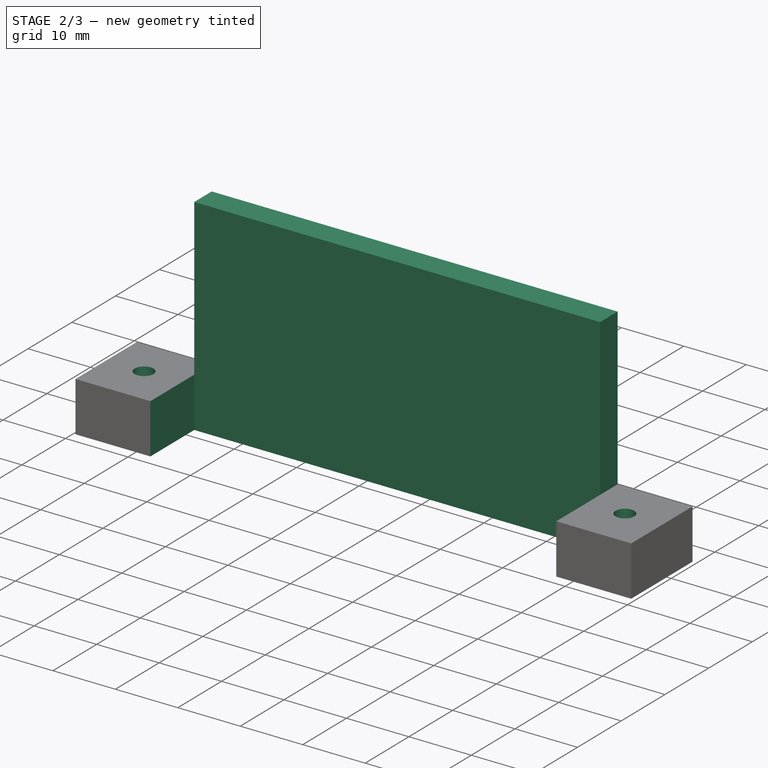
[diagram: stage 2 of 3 — iso view after this stage's code; geometry added in this stage tinted green]
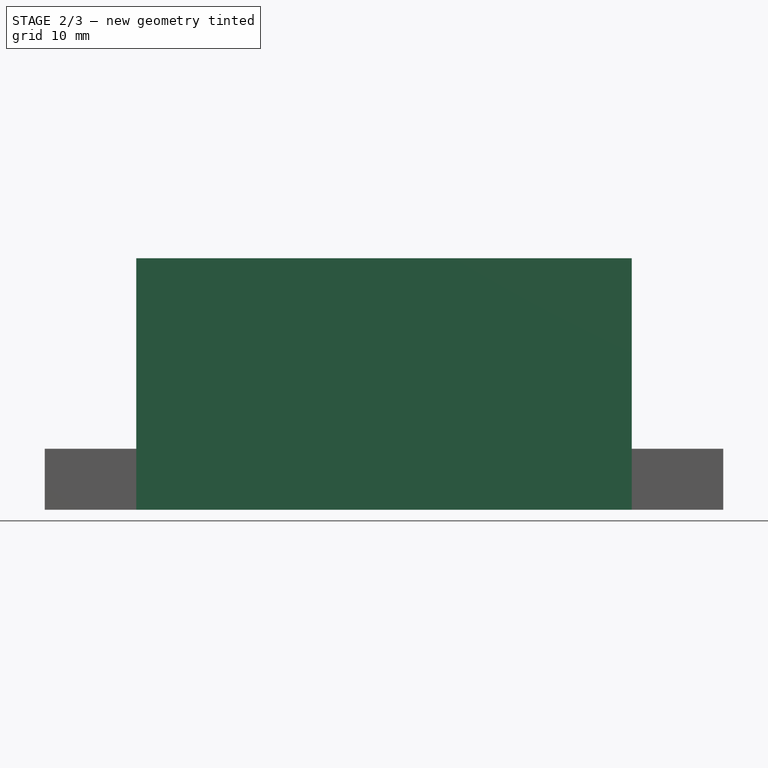
[diagram: stage 2 of 3 — front view after this stage's code; geometry added in this stage tinted green]
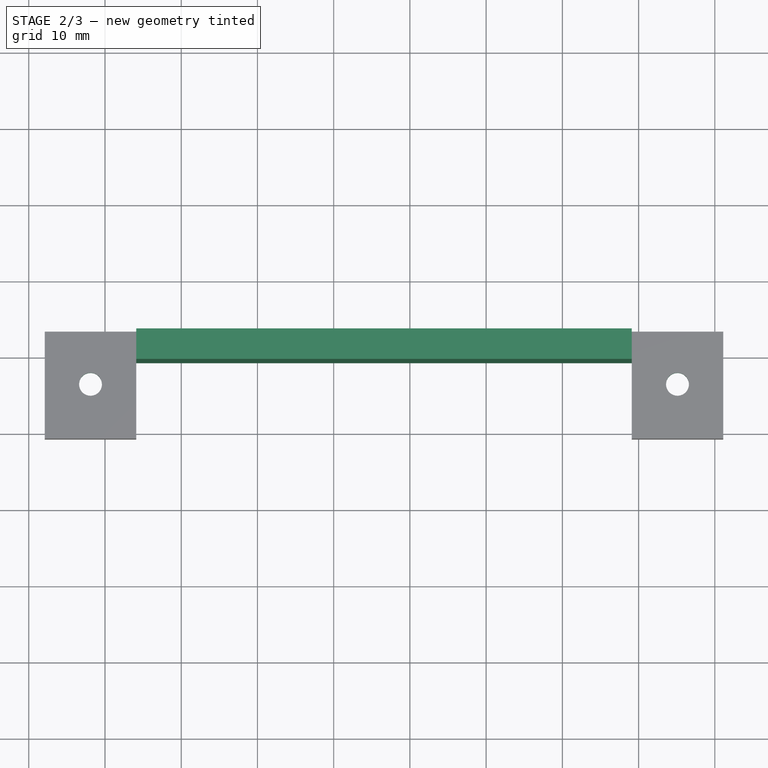
[diagram: stage 2 of 3 — top view after this stage's code; geometry added in this stage tinted green]
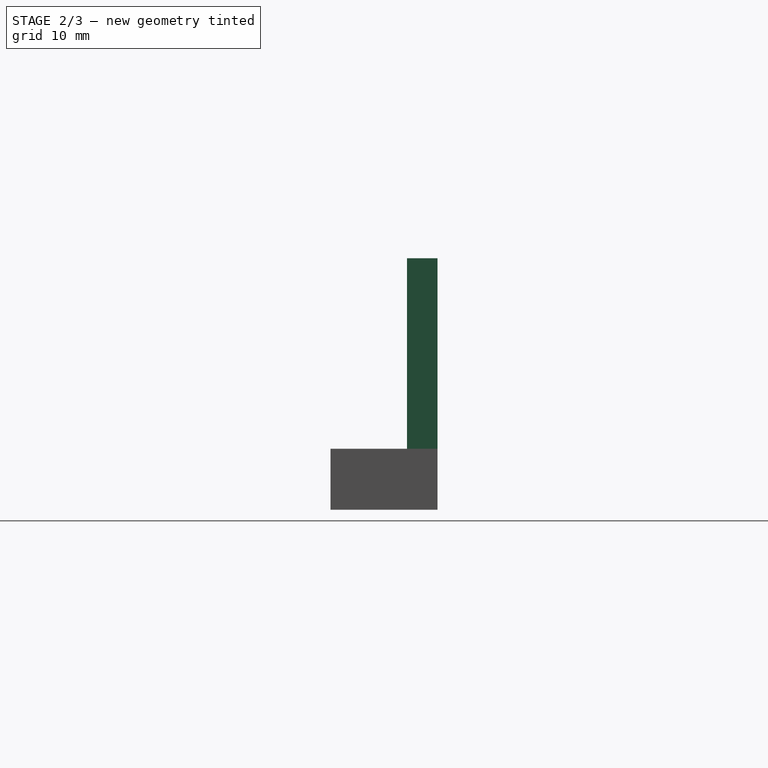
[diagram: stage 2 of 3 — right view after this stage's code; geometry added in this stage tinted green]
FEATURE [Sketcher::SketchObject] Sketch003
  ExternalGeometry = -> [Sketch]
  FullyConstrained = true
  MapMode = 5
  Placement = pos=(0,0,8) rot=(0,0,1;0rad)
  Support = -> [Pad]
  sketch-geometry (2):
    g0: Circle CenterX=88.1006 CenterY=156.409 CenterZ=0 NormalX=0 NormalY=0 NormalZ=1 AngleXU=0 Radius=1.5
    g1: Circle CenterX=165.101 CenterY=156.409 CenterZ=0 NormalX=0 NormalY=0 NormalZ=1 AngleXU=0 Radius=1.5
  constraints (4):
    c: Coincident(g-4,g0)
    c: Coincident(g-3,g1)
    c: Radius(g0) = 1.5
    c: Equal(g1,g0)
FEATURE [PartDesign::Pocket] Pocket001  label="Standoff holes"
  BaseFeature = -> Pocket
  Length = 5
  Length2 = 100
  Profile = -> Sketch003
  Type = 1
FEATURE [Sketcher::SketchObject] Sketch004
  ExternalGeometry = -> [Pocket001]
  FullyConstrained = true
  MapMode = 5
  Placement = pos=(0,0,8) rot=(0,0,1;0rad)
  Support = -> [Pocket001]
  sketch-geometry (5):
    g0: LineSegment StartX=94.1006 StartY=163.309 StartZ=0 EndX=159.101 EndY=163.309 EndZ=0
    g1: LineSegment StartX=159.101 StartY=163.309 StartZ=0 EndX=159.101 EndY=159.309 EndZ=0
    g2: LineSegment StartX=159.101 StartY=159.309 StartZ=0 EndX=94.1006 EndY=159.309 EndZ=0
    g3: LineSegment StartX=94.1006 StartY=159.309 StartZ=0 EndX=94.1006 EndY=163.309 EndZ=0
    g4: GeomPoint X=126.601 Y=163.309 Z=0
  constraints (12):
    c: Coincident(g0,g1)
    c: Coincident(g1,g2)
    c: Coincident(g2,g3)
    c: Coincident(g3,g0)
    c: Horizontal(g0)
    c: Vertical(g1)
    c: Vertical(g3)
    c: DistanceX(g0,g0) = 65
    c: Horizontal(g2)
    c: Symmetric(g-3,g-3,g4)
    c: Symmetric(g0,g0,g4)
    c: DistanceY(g1,g1) = 4
FEATURE [PartDesign::Pad] Pad001  label="Battery backplane"
  BaseFeature = -> Pocket001
  Direction = (1,1,1)
  Length = 25
  Length2 = 100
  Profile = -> Sketch004
  Type = 0
FEATURE [Sketcher::SketchObject] Sketch007
  ExternalGeometry = -> [Pad001]
  FullyConstrained = true
  MapMode = 5
  Placement = pos=(0,0,8) rot=(0,0,1;0rad)
  Support = -> [Pad001]
  sketch-geometry (4):
    g0: LineSegment StartX=94.1006 StartY=159.309 StartZ=0 EndX=94.1006 EndY=149.284 EndZ=0
    g1: LineSegment StartX=159.101 StartY=159.309 StartZ=0 EndX=159.101 EndY=149.284 EndZ=0
    g2: LineSegment StartX=94.1006 StartY=149.284 StartZ=0 EndX=159.101 EndY=149.284 EndZ=0
    g3: LineSegment StartX=159.101 StartY=159.309 StartZ=0 EndX=94.1006 EndY=159.309 EndZ=0
  constraints (10):
    c: Coincident(g0,g-4)
    c: PointOnObject(g0,g-3)
    c: Vertical(g0)
    c: Coincident(g1,g-5)
    c: PointOnObject(g1,g-3)
    c: Vertical(g1)
    c: Coincident(g2,g0)
    c: Coincident(g2,g1)
    c: Coincident(g3,g1)
    c: Coincident(g3,g0)
FEATURE [PartDesign::Pocket] Pocket004
  BaseFeature = -> Pad001
  Length = 7
  Length2 = 100
  Profile = -> Sketch007
  Type = 2
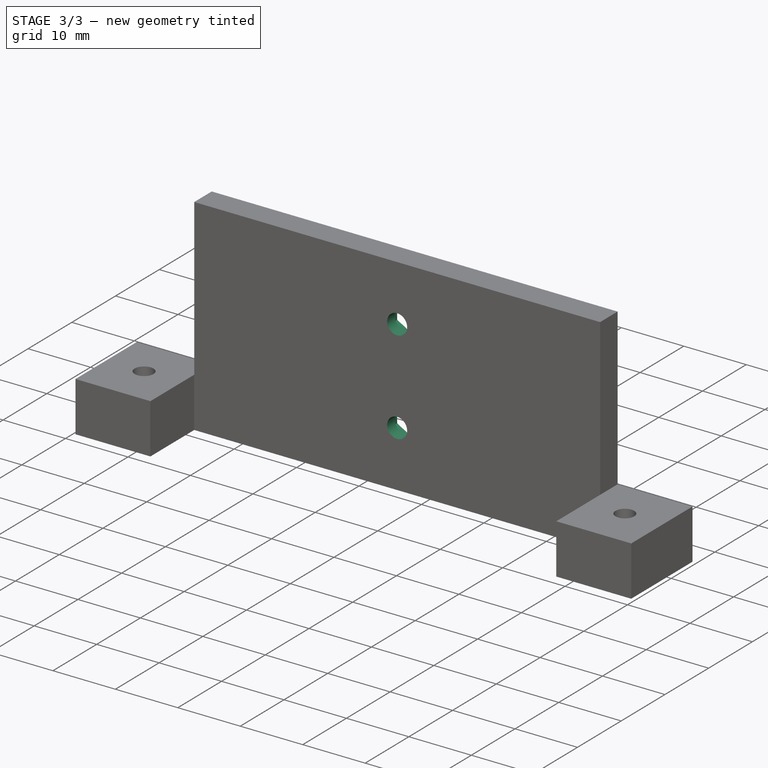
[diagram: stage 3 of 3 — iso view after this stage's code; geometry added in this stage tinted green]
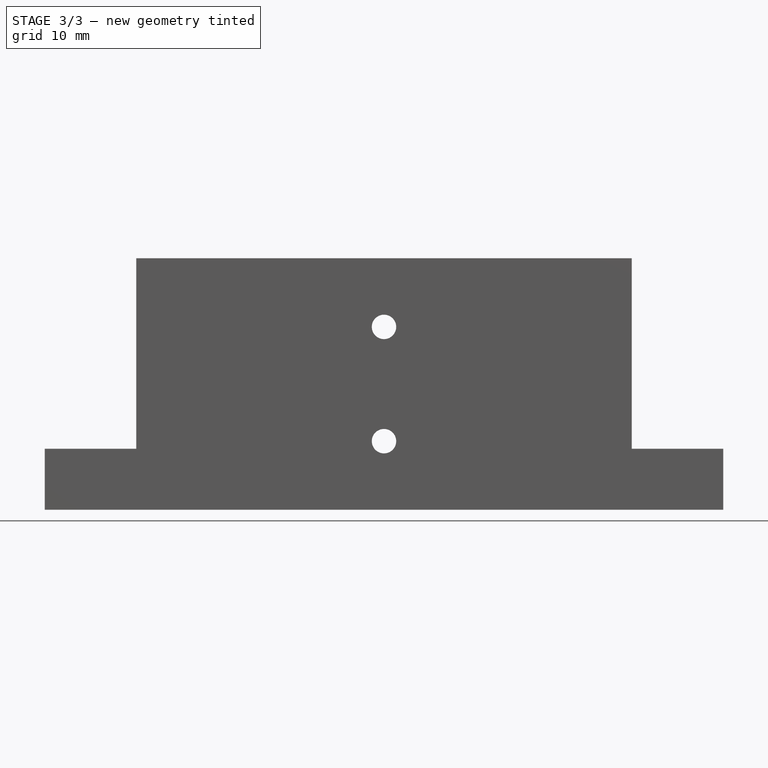
[diagram: stage 3 of 3 — front view after this stage's code; geometry added in this stage tinted green]
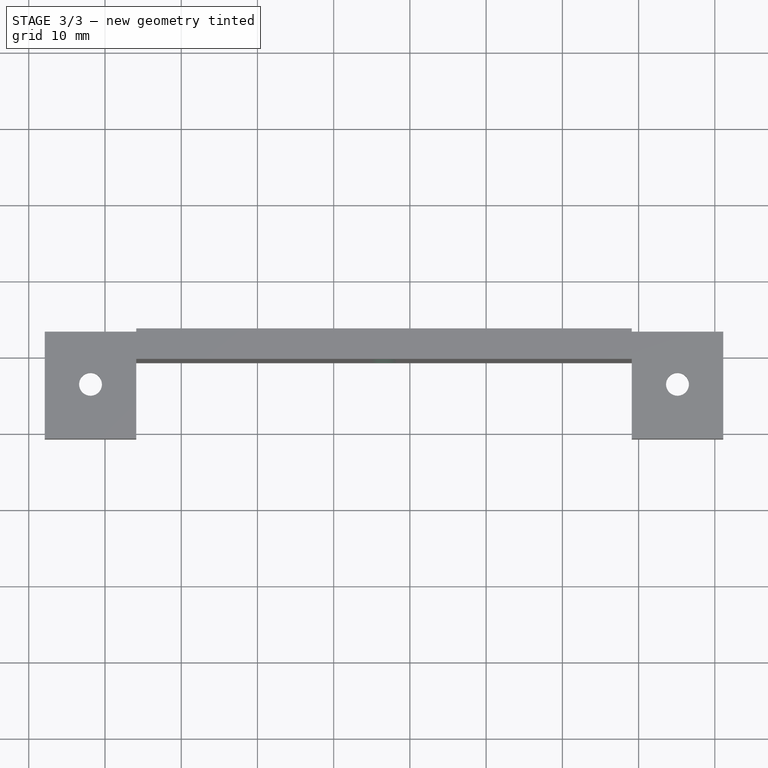
[diagram: stage 3 of 3 — top view after this stage's code; geometry added in this stage tinted green]
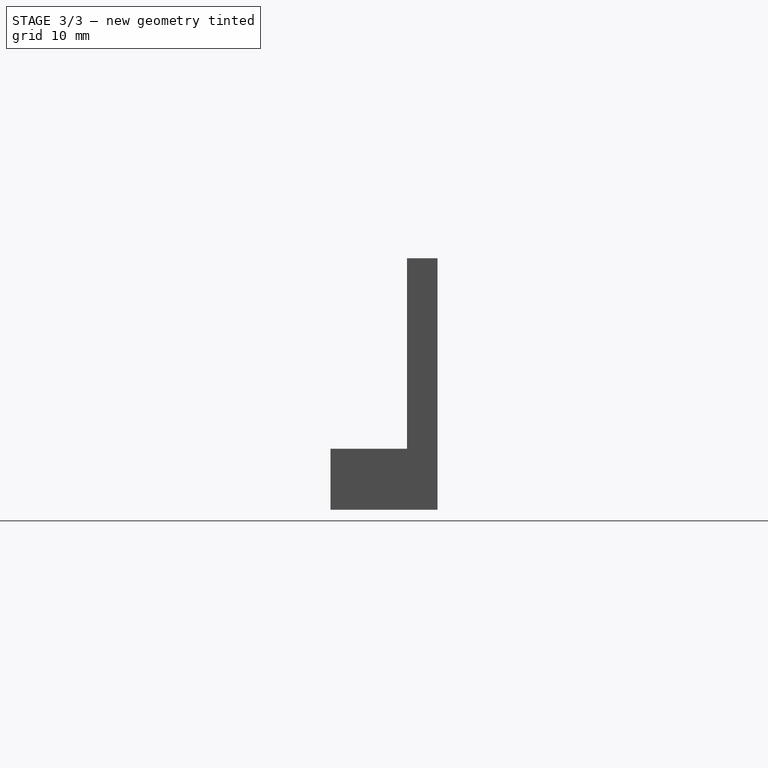
[diagram: stage 3 of 3 — right view after this stage's code; geometry added in this stage tinted green]
FEATURE [Sketcher::SketchObject] Sketch008
  ExternalGeometry = -> [Pocket004]
  FullyConstrained = true
  MapMode = 5
  Placement = pos=(0,159.309,0) rot=(1,0,0;1.5708rad)
  Support = -> [Pocket004]
  sketch-geometry (3):
    g0: Circle CenterX=126.601 CenterY=9 CenterZ=0 NormalX=0 NormalY=0 NormalZ=1 AngleXU=0 Radius=1.6
    g1: Circle CenterX=126.601 CenterY=23.99 CenterZ=0 NormalX=0 NormalY=0 NormalZ=1 AngleXU=0 Radius=1.6
    g2: GeomPoint X=126.601 Y=0 Z=0
  constraints (7):
    c: Vertical(g1,g0)
    c: Equal(g1,g0)
    c: Diameter(g1) = 3.2
    c: DistanceY(g0,g1) = 14.99
    c: Vertical(g2,g0)
    c: DistanceY(g2,g0) = 9
    c: Symmetric(g-3,g-3,g2)
FEATURE [PartDesign::Pocket] Pocket005
  BaseFeature = -> Pocket004
  Length = 5
  Length2 = 100
  Profile = -> Sketch008
  Type = 2
FEATURE [Sketcher::SketchObject] Sketch009
  ExternalGeometry = -> [Pocket005]
  FullyConstrained = true
  MapMode = 5
  Placement = pos=(0,163.309,0) rot=(0,0.707107,0.707107;3.14159rad)
  Support = -> [Pocket005]
  sketch-geometry (14):
    g0: LineSegment StartX=-123.801 StartY=25.6066 StartZ=0 EndX=-126.601 EndY=27.2232 EndZ=0
    g1: LineSegment StartX=-126.601 StartY=27.2232 StartZ=0 EndX=-129.401 EndY=25.6066 EndZ=0
    g2: LineSegment StartX=-129.401 StartY=25.6066 StartZ=0 EndX=-129.401 EndY=22.3734 EndZ=0
    g3: LineSegment StartX=-129.401 StartY=22.3734 StartZ=0 EndX=-126.601 EndY=20.7568 EndZ=0
    g4: LineSegment StartX=-126.601 StartY=20.7568 StartZ=0 EndX=-123.801 EndY=22.3734 EndZ=0
    g5: LineSegment StartX=-123.801 StartY=22.3734 StartZ=0 EndX=-123.801 EndY=25.6066 EndZ=0
    g6: Circle CenterX=-126.601 CenterY=23.99 CenterZ=0 NormalX=0 NormalY=0 NormalZ=1 AngleXU=0 Radius=3.23316
    g7: LineSegment StartX=-123.801 StartY=10.6166 StartZ=0 EndX=-126.601 EndY=12.2332 EndZ=0
    g8: LineSegment StartX=-126.601 StartY=12.2332 StartZ=0 EndX=-129.401 EndY=10.6166 EndZ=0
    g9: LineSegment StartX=-129.401 StartY=10.6166 StartZ=0 EndX=-129.401 EndY=7.38342 EndZ=0
    g10: LineSegment StartX=-129.401 StartY=7.38342 StartZ=0 EndX=-126.601 EndY=5.76684 EndZ=0
    g11: LineSegment StartX=-126.601 StartY=5.76684 StartZ=0 EndX=-123.801 EndY=7.38342 EndZ=0
    g12: LineSegment StartX=-123.801 StartY=7.38342 StartZ=0 EndX=-123.801 EndY=10.6166 EndZ=0
    g13: Circle CenterX=-126.601 CenterY=9 CenterZ=0 NormalX=0 NormalY=0 NormalZ=1 AngleXU=0 Radius=3.23316
  constraints (32):
    c: Coincident(g0,g1)
    c: Coincident(g1,g2)
    c: Coincident(g2,g3)
    c: Coincident(g3,g4)
    c: Coincident(g4,g5)
    c: Coincident(g5,g0)
    c: Equal(g0, g1-g5) x5
    c: PointOnObject(g0,g6)
    c: PointOnObject(g1,g6)
    c: PointOnObject(g2,g6)
    c: PointOnObject(g3,g6)
    c: PointOnObject(g4,g6)
    c: PointOnObject(g5,g6)
    c: Horizontal(g1,g0)
    c: DistanceX(g1,g0) = 5.6
    c: Coincident(g7,g8)
    c: Coincident(g8,g9)
    c: Coincident(g9,g10)
    c: Coincident(g10,g11)
    c: Coincident(g11,g12)
    c: Coincident(g12,g7)
    c: Equal(g7, g8-g12) x5
    c: PointOnObject(g7,g13)
    c: PointOnObject(g8,g13)
    c: PointOnObject(g9,g13)
    c: PointOnObject(g10,g13)
    c: PointOnObject(g11,g13)
    c: PointOnObject(g12,g13)
    c: Equal(g13,g6)
    c: Horizontal(g8,g7)
    c: Coincident(g6,g-3)
    c: Coincident(g13,g-5)
FEATURE [PartDesign::Pocket] Pocket006
  BaseFeature = -> Pocket005
  Length = 2.2
  Length2 = 100
  Profile = -> Sketch009
  Type = 0
FEATURE [PartDesign::Body] Body
  Group = -> [Sketch,Sketch001,Pad,Sketch002,Pocket,Sketch003,Pocket001,Sketch004,Pad001,Pocket004,Sketch007,Sketch008,Pocket005,Sketch009,Pocket006]
  Origin = -> Origin
  Tip = -> Pocket006
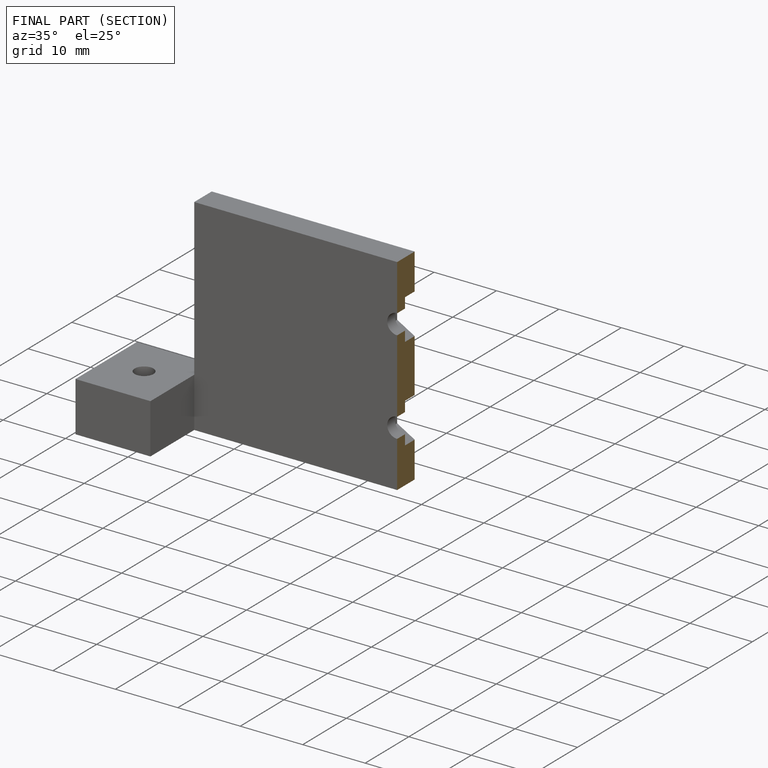
[diagram: finished part — half-section view (interior)]
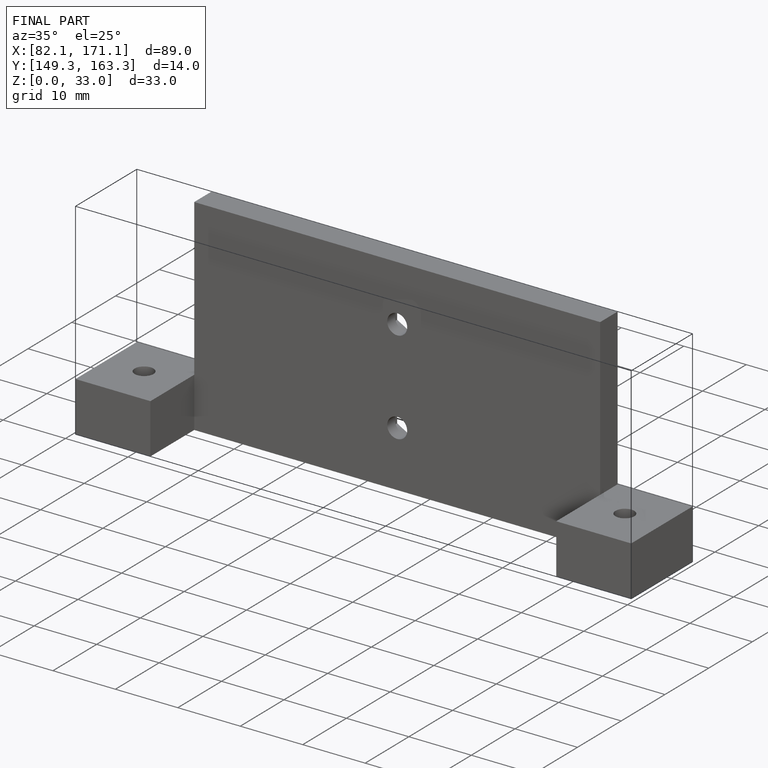
[diagram: finished part — iso view with bounding-box wireframe]
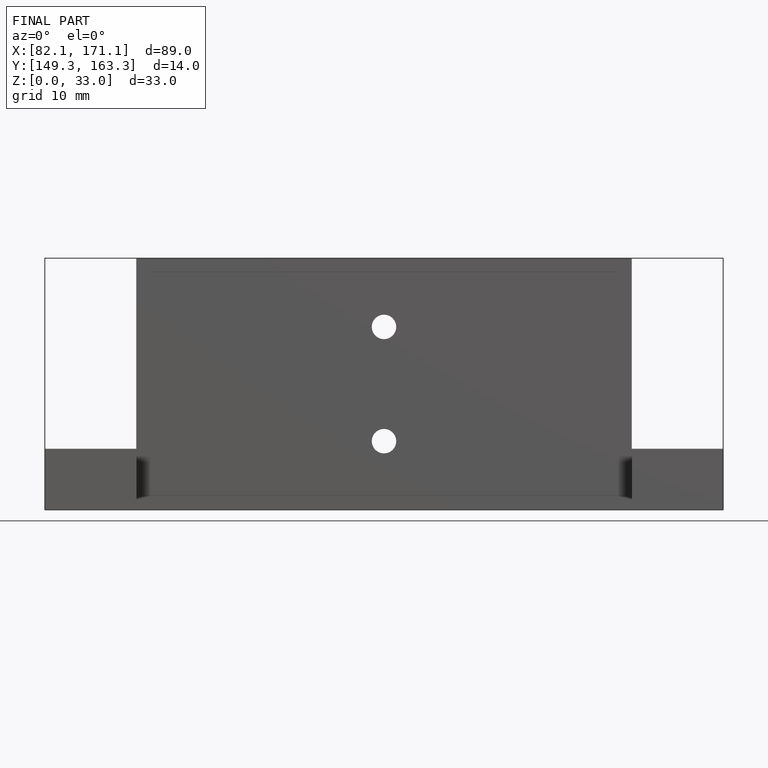
[diagram: finished part — front view with bounding-box wireframe]
